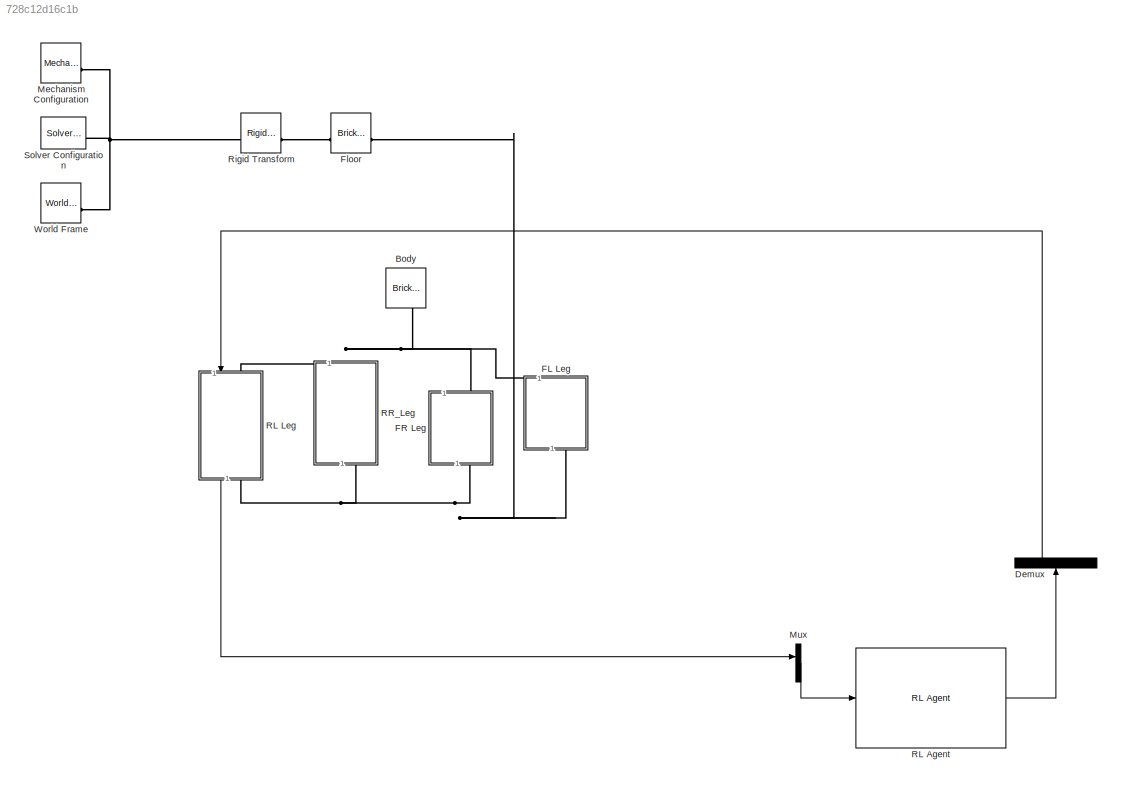
MODEL slx_728c12d16c1b
KIND model
CONFIG AbsTol = auto
CONFIG EnableMultiTasking = off
CONFIG FixedStep = auto
CONFIG MaxStep = auto
CONFIG MinStep = auto
CONFIG RelTol = 1e-3
CONFIG SampleTimeConstraint = Unconstrained
CONFIG SolverName = VariableStepAuto
CONFIG StartTime = 0.0
CONFIG StopTime = 10.0
BLOCK [Reference] Body  REF=sm_lib/Body Elements/Brick Solid
  NameLocation = top
  SourceBlock = sm_lib/Body Elements/Brick Solid
  SourceType = Brick Solid
BLOCK [Demux] Demux
  NameLocation = right
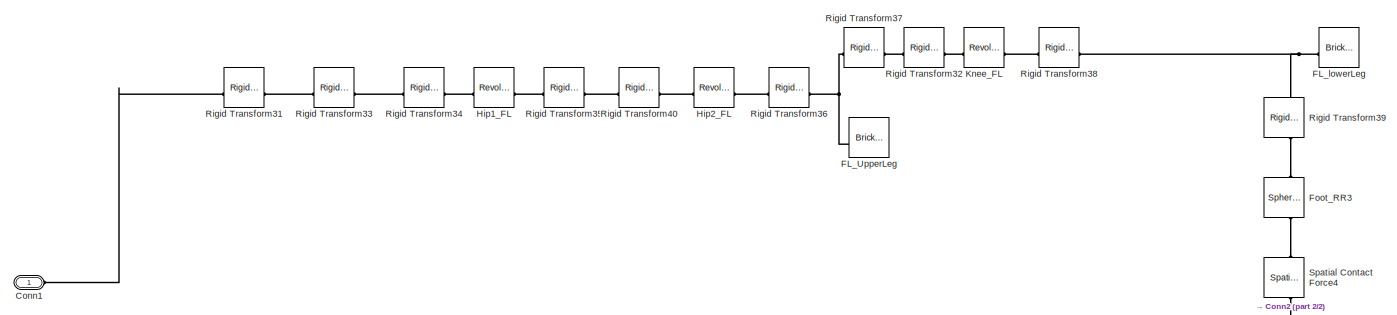
[diagram: FL Leg - part 1/2, top right region]
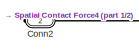
[diagram: FL Leg - part 2/2, bottom left region]
BLOCK [SubSystem] FL Leg
  NameLocation = left
BLOCK [PMIOPort] FL Leg/Conn1
  Side = Left
BLOCK [PMIOPort] FL Leg/Conn2
  Port = 2
  Side = Right
BLOCK [Reference] FL Leg/FL_UpperLeg  REF=sm_lib/Body Elements/Brick Solid
  NameLocation = top
  SourceBlock = sm_lib/Body Elements/Brick Solid
  SourceType = Brick Solid
BLOCK [Reference] FL Leg/FL_lowerLeg  REF=sm_lib/Body Elements/Brick Solid
  NameLocation = top
  SourceBlock = sm_lib/Body Elements/Brick Solid
  SourceType = Brick Solid
BLOCK [Reference] FL Leg/Foot_RR3  REF=sm_lib/Body Elements/Spherical Solid
  NameLocation = right
  SourceBlock = sm_lib/Body Elements/Spherical Solid
  SourceType = Spherical Solid
BLOCK [Reference] FL Leg/Hip1_FL  REF=sm_lib/Joints/Revolute Joint
  SourceBlock = sm_lib/Joints/Revolute Joint
  SourceType = Revolute Joint
BLOCK [Reference] FL Leg/Hip2_FL  REF=sm_lib/Joints/Revolute Joint
  SourceBlock = sm_lib/Joints/Revolute Joint
  SourceType = Revolute Joint
BLOCK [Reference] FL Leg/Knee_FL  REF=sm_lib/Joints/Revolute Joint
  SourceBlock = sm_lib/Joints/Revolute Joint
  SourceType = Revolute Joint
BLOCK [Reference] FL Leg/Rigid Transform31  REF=sm_lib/Frames and
Transforms/Rigid
Transform
  SourceBlock = sm_lib/Frames and\nTransforms/Rigid\nTransform
  SourceType = Rigid\nTransform
BLOCK [Reference] FL Leg/Rigid Transform32  REF=sm_lib/Frames and
Transforms/Rigid
Transform
  SourceBlock = sm_lib/Frames and\nTransforms/Rigid\nTransform
  SourceType = Rigid\nTransform
BLOCK [Reference] FL Leg/Rigid Transform33  REF=sm_lib/Frames and
Transforms/Rigid
Transform
  SourceBlock = sm_lib/Frames and\nTransforms/Rigid\nTransform
  SourceType = Rigid\nTransform
BLOCK [Reference] FL Leg/Rigid Transform34  REF=sm_lib/Frames and
Transforms/Rigid
Transform
  SourceBlock = sm_lib/Frames and\nTransforms/Rigid\nTransform
  SourceType = Rigid\nTransform
BLOCK [Reference] FL Leg/Rigid Transform35  REF=sm_lib/Frames and
Transforms/Rigid
Transform
  SourceBlock = sm_lib/Frames and\nTransforms/Rigid\nTransform
  SourceType = Rigid\nTransform
BLOCK [Reference] FL Leg/Rigid Transform36  REF=sm_lib/Frames and
Transforms/Rigid
Transform
  SourceBlock = sm_lib/Frames and\nTransforms/Rigid\nTransform
  SourceType = Rigid\nTransform
BLOCK [Reference] FL Leg/Rigid Transform37  REF=sm_lib/Frames and
Transforms/Rigid
Transform
  SourceBlock = sm_lib/Frames and\nTransforms/Rigid\nTransform
  SourceType = Rigid\nTransform
BLOCK [Reference] FL Leg/Rigid Transform38  REF=sm_lib/Frames and
Transforms/Rigid
Transform
  SourceBlock = sm_lib/Frames and\nTransforms/Rigid\nTransform
  SourceType = Rigid\nTransform
BLOCK [Reference] FL Leg/Rigid Transform39  REF=sm_lib/Frames and
Transforms/Rigid
Transform
  NameLocation = left
  SourceBlock = sm_lib/Frames and\nTransforms/Rigid\nTransform
  SourceType = Rigid\nTransform
BLOCK [Reference] FL Leg/Rigid Transform40  REF=sm_lib/Frames and
Transforms/Rigid
Transform
  SourceBlock = sm_lib/Frames and\nTransforms/Rigid\nTransform
  SourceType = Rigid\nTransform
BLOCK [Reference] FL Leg/Spatial Contact Force4  REF=sm_lib/Forces and
Torques/Spatial
Contact Force
  NameLocation = left
  SourceBlock = sm_lib/Forces and\nTorques/Spatial\nContact Force
  SourceType = Spatial\nContact Force
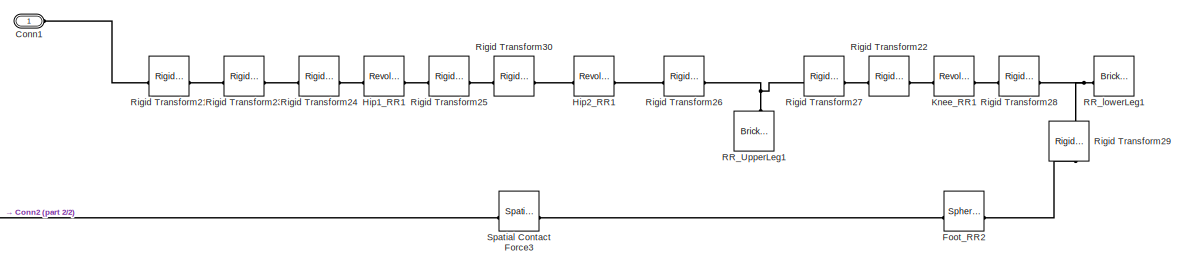
[diagram: FR Leg - part 1/2, top right region]
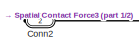
[diagram: FR Leg - part 2/2, bottom left region]
BLOCK [SubSystem] FR Leg
  NameLocation = left
BLOCK [PMIOPort] FR Leg/Conn1
  Side = Left
BLOCK [PMIOPort] FR Leg/Conn2
  Port = 2
  Side = Right
BLOCK [Reference] FR Leg/Foot_RR2  REF=sm_lib/Body Elements/Spherical Solid
  SourceBlock = sm_lib/Body Elements/Spherical Solid
  SourceType = Spherical Solid
BLOCK [Reference] FR Leg/Hip1_RR1  REF=sm_lib/Joints/Revolute Joint
  SourceBlock = sm_lib/Joints/Revolute Joint
  SourceType = Revolute Joint
BLOCK [Reference] FR Leg/Hip2_RR1  REF=sm_lib/Joints/Revolute Joint
  SourceBlock = sm_lib/Joints/Revolute Joint
  SourceType = Revolute Joint
BLOCK [Reference] FR Leg/Knee_RR1  REF=sm_lib/Joints/Revolute Joint
  SourceBlock = sm_lib/Joints/Revolute Joint
  SourceType = Revolute Joint
BLOCK [Reference] FR Leg/RR_UpperLeg1  REF=sm_lib/Body Elements/Brick Solid
  NameLocation = right
  SourceBlock = sm_lib/Body Elements/Brick Solid
  SourceType = Brick Solid
BLOCK [Reference] FR Leg/RR_lowerLeg1  REF=sm_lib/Body Elements/Brick Solid
  NameLocation = top
  SourceBlock = sm_lib/Body Elements/Brick Solid
  SourceType = Brick Solid
BLOCK [Reference] FR Leg/Rigid Transform21  REF=sm_lib/Frames and
Transforms/Rigid
Transform
  SourceBlock = sm_lib/Frames and\nTransforms/Rigid\nTransform
  SourceType = Rigid\nTransform
BLOCK [Reference] FR Leg/Rigid Transform22  REF=sm_lib/Frames and
Transforms/Rigid
Transform
  SourceBlock = sm_lib/Frames and\nTransforms/Rigid\nTransform
  SourceType = Rigid\nTransform
BLOCK [Reference] FR Leg/Rigid Transform23  REF=sm_lib/Frames and
Transforms/Rigid
Transform
  SourceBlock = sm_lib/Frames and\nTransforms/Rigid\nTransform
  SourceType = Rigid\nTransform
BLOCK [Reference] FR Leg/Rigid Transform24  REF=sm_lib/Frames and
Transforms/Rigid
Transform
  SourceBlock = sm_lib/Frames and\nTransforms/Rigid\nTransform
  SourceType = Rigid\nTransform
BLOCK [Reference] FR Leg/Rigid Transform25  REF=sm_lib/Frames and
Transforms/Rigid
Transform
  SourceBlock = sm_lib/Frames and\nTransforms/Rigid\nTransform
  SourceType = Rigid\nTransform
BLOCK [Reference] FR Leg/Rigid Transform26  REF=sm_lib/Frames and
Transforms/Rigid
Transform
  SourceBlock = sm_lib/Frames and\nTransforms/Rigid\nTransform
  SourceType = Rigid\nTransform
BLOCK [Reference] FR Leg/Rigid Transform27  REF=sm_lib/Frames and
Transforms/Rigid
Transform
  SourceBlock = sm_lib/Frames and\nTransforms/Rigid\nTransform
  SourceType = Rigid\nTransform
BLOCK [Reference] FR Leg/Rigid Transform28  REF=sm_lib/Frames and
Transforms/Rigid
Transform
  SourceBlock = sm_lib/Frames and\nTransforms/Rigid\nTransform
  SourceType = Rigid\nTransform
BLOCK [Reference] FR Leg/Rigid Transform29  REF=sm_lib/Frames and
Transforms/Rigid
Transform
  NameLocation = left
  SourceBlock = sm_lib/Frames and\nTransforms/Rigid\nTransform
  SourceType = Rigid\nTransform
BLOCK [Reference] FR Leg/Rigid Transform30  REF=sm_lib/Frames and
Transforms/Rigid
Transform
  SourceBlock = sm_lib/Frames and\nTransforms/Rigid\nTransform
  SourceType = Rigid\nTransform
BLOCK [Reference] FR Leg/Spatial Contact Force3  REF=sm_lib/Forces and
Torques/Spatial
Contact Force
  NameLocation = top
  SourceBlock = sm_lib/Forces and\nTorques/Spatial\nContact Force
  SourceType = Spatial\nContact Force
BLOCK [Reference] Floor  REF=sm_lib/Body Elements/Brick Solid
  NameLocation = top
  SourceBlock = sm_lib/Body Elements/Brick Solid
  SourceType = Brick Solid
BLOCK [Reference] Mechanism Configuration  REF=sm_lib/Utilities/Mechanism
Configuration
  SourceBlock = sm_lib/Utilities/Mechanism\nConfiguration
  SourceType = Mechanism\nConfiguration
BLOCK [Mux] Mux
  DisplayOption = bar
BLOCK [Reference] RL Agent  REF=rllib/RL Agent
  SourceBlock = rllib/RL Agent
  SourceType = RL Agent
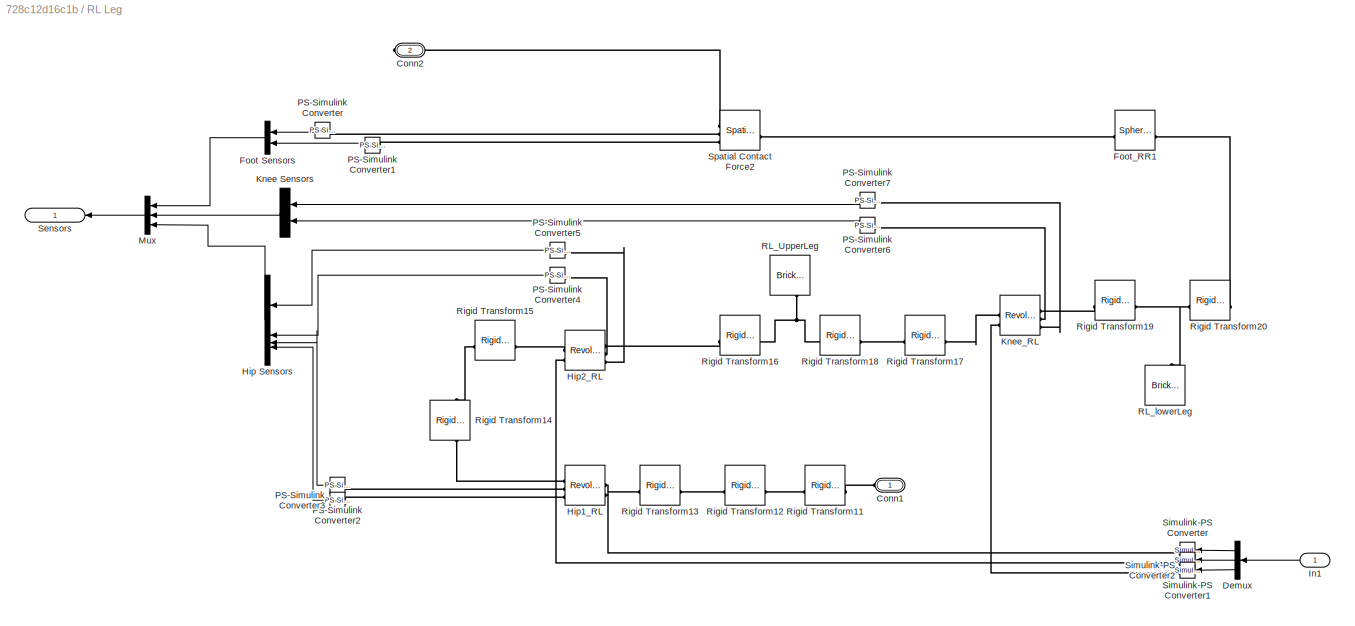
BLOCK [SubSystem] RL Leg
  NameLocation = left
BLOCK [PMIOPort] RL Leg/Conn1
  NameLocation = top
  Side = Left
BLOCK [PMIOPort] RL Leg/Conn2
  NameLocation = top
  Port = 2
  Side = Right
BLOCK [Demux] RL Leg/Demux
  NameLocation = top
  Outputs = 3
BLOCK [Mux] RL Leg/Foot Sensors
  DisplayOption = bar
  Inputs = 2
  NameLocation = top
BLOCK [Reference] RL Leg/Foot_RR1  REF=sm_lib/Body Elements/Spherical Solid
  SourceBlock = sm_lib/Body Elements/Spherical Solid
  SourceType = Spherical Solid
BLOCK [Mux] RL Leg/Hip Sensors
  DisplayOption = bar
  NameLocation = left
BLOCK [Reference] RL Leg/Hip1_RL  REF=sm_lib/Joints/Revolute Joint
  NameLocation = top
  SourceBlock = sm_lib/Joints/Revolute Joint
  SourceType = Revolute Joint
BLOCK [Reference] RL Leg/Hip2_RL  REF=sm_lib/Joints/Revolute Joint
  SourceBlock = sm_lib/Joints/Revolute Joint
  SourceType = Revolute Joint
BLOCK [Inport] RL Leg/In1
  NameLocation = top
BLOCK [Mux] RL Leg/Knee Sensors
  DisplayOption = bar
  Inputs = 2
  NameLocation = top
BLOCK [Reference] RL Leg/Knee_RL  REF=sm_lib/Joints/Revolute Joint
  SourceBlock = sm_lib/Joints/Revolute Joint
  SourceType = Revolute Joint
BLOCK [Mux] RL Leg/Mux
  DisplayOption = bar
  Inputs = 3
  NameLocation = top
BLOCK [Reference] RL Leg/PS-Simulink Converter  REF=nesl_utility/PS-Simulink
Converter
  NameLocation = top
  SourceBlock = nesl_utility/PS-Simulink\nConverter
  SourceType = PS-Simulink\nConverter
BLOCK [Reference] RL Leg/PS-Simulink Converter1  REF=nesl_utility/PS-Simulink
Converter
  NameLocation = top
  SourceBlock = nesl_utility/PS-Simulink\nConverter
  SourceType = PS-Simulink\nConverter
BLOCK [Reference] RL Leg/PS-Simulink Converter2  REF=nesl_utility/PS-Simulink
Converter
  NameLocation = top
  SourceBlock = nesl_utility/PS-Simulink\nConverter
  SourceType = PS-Simulink\nConverter
BLOCK [Reference] RL Leg/PS-Simulink Converter3  REF=nesl_utility/PS-Simulink
Converter
  NameLocation = right
  SourceBlock = nesl_utility/PS-Simulink\nConverter
  SourceType = PS-Simulink\nConverter
BLOCK [Reference] RL Leg/PS-Simulink Converter4  REF=nesl_utility/PS-Simulink
Converter
  NameLocation = top
  SourceBlock = nesl_utility/PS-Simulink\nConverter
  SourceType = PS-Simulink\nConverter
BLOCK [Reference] RL Leg/PS-Simulink Converter5  REF=nesl_utility/PS-Simulink
Converter
  NameLocation = top
  SourceBlock = nesl_utility/PS-Simulink\nConverter
  SourceType = PS-Simulink\nConverter
BLOCK [Reference] RL Leg/PS-Simulink Converter6  REF=nesl_utility/PS-Simulink
Converter
  NameLocation = top
  SourceBlock = nesl_utility/PS-Simulink\nConverter
  SourceType = PS-Simulink\nConverter
BLOCK [Reference] RL Leg/PS-Simulink Converter7  REF=nesl_utility/PS-Simulink
Converter
  NameLocation = top
  SourceBlock = nesl_utility/PS-Simulink\nConverter
  SourceType = PS-Simulink\nConverter
BLOCK [Reference] RL Leg/RL_UpperLeg  REF=sm_lib/Body Elements/Brick Solid
  NameLocation = left
  SourceBlock = sm_lib/Body Elements/Brick Solid
  SourceType = Brick Solid
BLOCK [Reference] RL Leg/RL_lowerLeg  REF=sm_lib/Body Elements/Brick Solid
  NameLocation = right
  SourceBlock = sm_lib/Body Elements/Brick Solid
  SourceType = Brick Solid
BLOCK [Reference] RL Leg/Rigid Transform11  REF=sm_lib/Frames and
Transforms/Rigid
Transform
  NameLocation = top
  SourceBlock = sm_lib/Frames and\nTransforms/Rigid\nTransform
  SourceType = Rigid\nTransform
BLOCK [Reference] RL Leg/Rigid Transform12  REF=sm_lib/Frames and
Transforms/Rigid
Transform
  NameLocation = top
  SourceBlock = sm_lib/Frames and\nTransforms/Rigid\nTransform
  SourceType = Rigid\nTransform
BLOCK [Reference] RL Leg/Rigid Transform13  REF=sm_lib/Frames and
Transforms/Rigid
Transform
  NameLocation = top
  SourceBlock = sm_lib/Frames and\nTransforms/Rigid\nTransform
  SourceType = Rigid\nTransform
BLOCK [Reference] RL Leg/Rigid Transform14  REF=sm_lib/Frames and
Transforms/Rigid
Transform
  NameLocation = right
  SourceBlock = sm_lib/Frames and\nTransforms/Rigid\nTransform
  SourceType = Rigid\nTransform
BLOCK [Reference] RL Leg/Rigid Transform15  REF=sm_lib/Frames and
Transforms/Rigid
Transform
  SourceBlock = sm_lib/Frames and\nTransforms/Rigid\nTransform
  SourceType = Rigid\nTransform
BLOCK [Reference] RL Leg/Rigid Transform16  REF=sm_lib/Frames and
Transforms/Rigid
Transform
  SourceBlock = sm_lib/Frames and\nTransforms/Rigid\nTransform
  SourceType = Rigid\nTransform
BLOCK [Reference] RL Leg/Rigid Transform17  REF=sm_lib/Frames and
Transforms/Rigid
Transform
  SourceBlock = sm_lib/Frames and\nTransforms/Rigid\nTransform
  SourceType = Rigid\nTransform
BLOCK [Reference] RL Leg/Rigid Transform18  REF=sm_lib/Frames and
Transforms/Rigid
Transform
  SourceBlock = sm_lib/Frames and\nTransforms/Rigid\nTransform
  SourceType = Rigid\nTransform
BLOCK [Reference] RL Leg/Rigid Transform19  REF=sm_lib/Frames and
Transforms/Rigid
Transform
  SourceBlock = sm_lib/Frames and\nTransforms/Rigid\nTransform
  SourceType = Rigid\nTransform
BLOCK [Reference] RL Leg/Rigid Transform20  REF=sm_lib/Frames and
Transforms/Rigid
Transform
  SourceBlock = sm_lib/Frames and\nTransforms/Rigid\nTransform
  SourceType = Rigid\nTransform
BLOCK [Outport] RL Leg/Sensors
  NameLocation = top
BLOCK [Reference] RL Leg/Simulink-PS Converter  REF=nesl_utility/Simulink-PS
Converter
  NameLocation = top
  SourceBlock = nesl_utility/Simulink-PS\nConverter
  SourceType = Simulink-PS\nConverter
BLOCK [Reference] RL Leg/Simulink-PS Converter1  REF=nesl_utility/Simulink-PS
Converter
  NameLocation = top
  SourceBlock = nesl_utility/Simulink-PS\nConverter
  SourceType = Simulink-PS\nConverter
BLOCK [Reference] RL Leg/Simulink-PS Converter2  REF=nesl_utility/Simulink-PS
Converter
  NameLocation = top
  SourceBlock = nesl_utility/Simulink-PS\nConverter
  SourceType = Simulink-PS\nConverter
BLOCK [Reference] RL Leg/Spatial Contact Force2  REF=sm_lib/Forces and
Torques/Spatial
Contact Force
  NameLocation = top
  SourceBlock = sm_lib/Forces and\nTorques/Spatial\nContact Force
  SourceType = Spatial\nContact Force
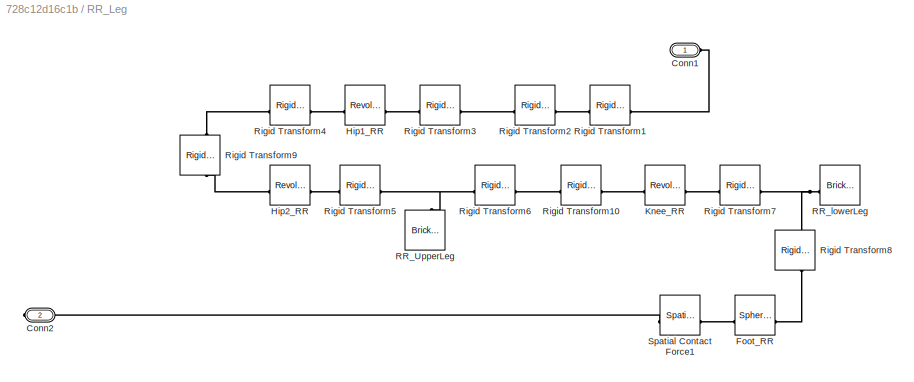
BLOCK [SubSystem] RR_Leg
  NameLocation = left
BLOCK [PMIOPort] RR_Leg/Conn1
  Side = Left
BLOCK [PMIOPort] RR_Leg/Conn2
  Port = 2
  Side = Right
BLOCK [Reference] RR_Leg/Foot_RR  REF=sm_lib/Body Elements/Spherical Solid
  SourceBlock = sm_lib/Body Elements/Spherical Solid
  SourceType = Spherical Solid
BLOCK [Reference] RR_Leg/Hip1_RR  REF=sm_lib/Joints/Revolute Joint
  NameLocation = top
  SourceBlock = sm_lib/Joints/Revolute Joint
  SourceType = Revolute Joint
BLOCK [Reference] RR_Leg/Hip2_RR  REF=sm_lib/Joints/Revolute Joint
  SourceBlock = sm_lib/Joints/Revolute Joint
  SourceType = Revolute Joint
BLOCK [Reference] RR_Leg/Knee_RR  REF=sm_lib/Joints/Revolute Joint
  SourceBlock = sm_lib/Joints/Revolute Joint
  SourceType = Revolute Joint
BLOCK [Reference] RR_Leg/RR_UpperLeg  REF=sm_lib/Body Elements/Brick Solid
  NameLocation = right
  SourceBlock = sm_lib/Body Elements/Brick Solid
  SourceType = Brick Solid
BLOCK [Reference] RR_Leg/RR_lowerLeg  REF=sm_lib/Body Elements/Brick Solid
  NameLocation = top
  SourceBlock = sm_lib/Body Elements/Brick Solid
  SourceType = Brick Solid
BLOCK [Reference] RR_Leg/Rigid Transform1  REF=sm_lib/Frames and
Transforms/Rigid
Transform
  NameLocation = top
  SourceBlock = sm_lib/Frames and\nTransforms/Rigid\nTransform
  SourceType = Rigid\nTransform
BLOCK [Reference] RR_Leg/Rigid Transform10  REF=sm_lib/Frames and
Transforms/Rigid
Transform
  SourceBlock = sm_lib/Frames and\nTransforms/Rigid\nTransform
  SourceType = Rigid\nTransform
BLOCK [Reference] RR_Leg/Rigid Transform2  REF=sm_lib/Frames and
Transforms/Rigid
Transform
  NameLocation = top
  SourceBlock = sm_lib/Frames and\nTransforms/Rigid\nTransform
  SourceType = Rigid\nTransform
BLOCK [Reference] RR_Leg/Rigid Transform3  REF=sm_lib/Frames and
Transforms/Rigid
Transform
  NameLocation = top
  SourceBlock = sm_lib/Frames and\nTransforms/Rigid\nTransform
  SourceType = Rigid\nTransform
BLOCK [Reference] RR_Leg/Rigid Transform4  REF=sm_lib/Frames and
Transforms/Rigid
Transform
  NameLocation = top
  SourceBlock = sm_lib/Frames and\nTransforms/Rigid\nTransform
  SourceType = Rigid\nTransform
BLOCK [Reference] RR_Leg/Rigid Transform5  REF=sm_lib/Frames and
Transforms/Rigid
Transform
  SourceBlock = sm_lib/Frames and\nTransforms/Rigid\nTransform
  SourceType = Rigid\nTransform
BLOCK [Reference] RR_Leg/Rigid Transform6  REF=sm_lib/Frames and
Transforms/Rigid
Transform
  SourceBlock = sm_lib/Frames and\nTransforms/Rigid\nTransform
  SourceType = Rigid\nTransform
BLOCK [Reference] RR_Leg/Rigid Transform7  REF=sm_lib/Frames and
Transforms/Rigid
Transform
  SourceBlock = sm_lib/Frames and\nTransforms/Rigid\nTransform
  SourceType = Rigid\nTransform
BLOCK [Reference] RR_Leg/Rigid Transform8  REF=sm_lib/Frames and
Transforms/Rigid
Transform
  NameLocation = left
  SourceBlock = sm_lib/Frames and\nTransforms/Rigid\nTransform
  SourceType = Rigid\nTransform
BLOCK [Reference] RR_Leg/Rigid Transform9  REF=sm_lib/Frames and
Transforms/Rigid
Transform
  NameLocation = left
  SourceBlock = sm_lib/Frames and\nTransforms/Rigid\nTransform
  SourceType = Rigid\nTransform
BLOCK [Reference] RR_Leg/Spatial Contact Force1  REF=sm_lib/Forces and
Torques/Spatial
Contact Force
  NameLocation = top
  SourceBlock = sm_lib/Forces and\nTorques/Spatial\nContact Force
  SourceType = Spatial\nContact Force
BLOCK [Reference] Rigid Transform  REF=sm_lib/Frames and
Transforms/Rigid
Transform
  SourceBlock = sm_lib/Frames and\nTransforms/Rigid\nTransform
  SourceType = Rigid\nTransform
BLOCK [Reference] Solver Configuration  REF=nesl_utility/Solver
Configuration
  SourceBlock = nesl_utility/Solver\nConfiguration
  SourceType = Solver\nConfiguration
BLOCK [Reference] World Frame  REF=sm_lib/Frames and
Transforms/World Frame
  SourceBlock = sm_lib/Frames and\nTransforms/World Frame
  SourceType = World Frame
LINE Demux:1 -> RL Leg:1
LINE Mux:1 -> RL Agent:1
LINE RL Agent:1 -> Demux:1
LINE RL Leg/Demux:1 -> RL Leg/Simulink-PS Converter:1
LINE RL Leg/Demux:2 -> RL Leg/Simulink-PS Converter1:1
LINE RL Leg/Demux:3 -> RL Leg/Simulink-PS Converter2:1
LINE RL Leg/Foot Sensors:1 -> RL Leg/Mux:1
LINE RL Leg/Hip Sensors:1 -> RL Leg/Mux:3
LINE RL Leg/In1:1 -> RL Leg/Demux:1
LINE RL Leg/Knee Sensors:1 -> RL Leg/Mux:2
LINE RL Leg/Mux:1 -> RL Leg/Sensors:1
LINE RL Leg/PS-Simulink Converter1:1 -> RL Leg/Foot Sensors:2
LINE RL Leg/PS-Simulink Converter2:1 -> RL Leg/Hip Sensors:3
LINE RL Leg/PS-Simulink Converter3:1 -> RL Leg/Hip Sensors:4
LINE RL Leg/PS-Simulink Converter4:1 -> RL Leg/Hip Sensors:2
LINE RL Leg/PS-Simulink Converter5:1 -> RL Leg/Hip Sensors:1
LINE RL Leg/PS-Simulink Converter6:1 -> RL Leg/Knee Sensors:2
LINE RL Leg/PS-Simulink Converter7:1 -> RL Leg/Knee Sensors:1
LINE RL Leg/PS-Simulink Converter:1 -> RL Leg/Foot Sensors:1
LINE RL Leg:1 -> Mux:1
PNET net1: Body:RConn1 -- FL Leg:LConn1 -- FR Leg:LConn1 -- RL Leg:LConn1 -- RR_Leg:LConn1
PLINE FL Leg/Conn1:RConn1 -- FL Leg/Rigid Transform31:LConn1
PLINE FL Leg/Conn2:RConn1 -- FL Leg/Spatial Contact Force4:RConn1
PNET net2: FL Leg/FL_UpperLeg:RConn1 -- FL Leg/Rigid Transform36:RConn1 -- FL Leg/Rigid Transform37:LConn1
PNET net3: FL Leg/FL_lowerLeg:RConn1 -- FL Leg/Rigid Transform38:RConn1 -- FL Leg/Rigid Transform39:LConn1
PLINE FL Leg/Foot_RR3:LConn1 -- FL Leg/Spatial Contact Force4:LConn1
PLINE FL Leg/Foot_RR3:RConn1 -- FL Leg/Rigid Transform39:RConn1
PLINE FL Leg/Hip1_FL:LConn1 -- FL Leg/Rigid Transform34:RConn1
PLINE FL Leg/Hip1_FL:RConn1 -- FL Leg/Rigid Transform35:LConn1
PLINE FL Leg/Hip2_FL:LConn1 -- FL Leg/Rigid Transform40:RConn1
PLINE FL Leg/Hip2_FL:RConn1 -- FL Leg/Rigid Transform36:LConn1
PLINE FL Leg/Knee_FL:LConn1 -- FL Leg/Rigid Transform32:RConn1
PLINE FL Leg/Knee_FL:RConn1 -- FL Leg/Rigid Transform38:LConn1
PLINE FL Leg/Rigid Transform31:RConn1 -- FL Leg/Rigid Transform33:LConn1
PLINE FL Leg/Rigid Transform32:LConn1 -- FL Leg/Rigid Transform37:RConn1
PLINE FL Leg/Rigid Transform33:RConn1 -- FL Leg/Rigid Transform34:LConn1
PLINE FL Leg/Rigid Transform35:RConn1 -- FL Leg/Rigid Transform40:LConn1
PNET net4: FL Leg:RConn1 -- FR Leg:RConn1 -- Floor:LConn1 -- RL Leg:RConn1 -- RR_Leg:RConn1
PLINE FR Leg/Conn1:RConn1 -- FR Leg/Rigid Transform21:LConn1
PLINE FR Leg/Conn2:RConn1 -- FR Leg/Spatial Contact Force3:RConn1
PLINE FR Leg/Foot_RR2:LConn1 -- FR Leg/Spatial Contact Force3:LConn1
PLINE FR Leg/Foot_RR2:RConn1 -- FR Leg/Rigid Transform29:RConn1
PLINE FR Leg/Hip1_RR1:LConn1 -- FR Leg/Rigid Transform24:RConn1
PLINE FR Leg/Hip1_RR1:RConn1 -- FR Leg/Rigid Transform25:LConn1
PLINE FR Leg/Hip2_RR1:LConn1 -- FR Leg/Rigid Transform30:RConn1
PLINE FR Leg/Hip2_RR1:RConn1 -- FR Leg/Rigid Transform26:LConn1
PLINE FR Leg/Knee_RR1:LConn1 -- FR Leg/Rigid Transform22:RConn1
PLINE FR Leg/Knee_RR1:RConn1 -- FR Leg/Rigid Transform28:LConn1
PNET net5: FR Leg/RR_UpperLeg1:RConn1 -- FR Leg/Rigid Transform26:RConn1 -- FR Leg/Rigid Transform27:LConn1
PNET net6: FR Leg/RR_lowerLeg1:RConn1 -- FR Leg/Rigid Transform28:RConn1 -- FR Leg/Rigid Transform29:LConn1
PLINE FR Leg/Rigid Transform21:RConn1 -- FR Leg/Rigid Transform23:LConn1
PLINE FR Leg/Rigid Transform22:LConn1 -- FR Leg/Rigid Transform27:RConn1
PLINE FR Leg/Rigid Transform23:RConn1 -- FR Leg/Rigid Transform24:LConn1
PLINE FR Leg/Rigid Transform25:RConn1 -- FR Leg/Rigid Transform30:LConn1
PLINE Floor:RConn1 -- Rigid Transform:RConn1
PNET net7: Mechanism Configuration:RConn1 -- Rigid Transform:LConn1 -- Solver Configuration:RConn1 -- World Frame:RConn1
PLINE RL Leg/Conn1:RConn1 -- RL Leg/Rigid Transform11:LConn1
PLINE RL Leg/Conn2:RConn1 -- RL Leg/Spatial Contact Force2:RConn1
PLINE RL Leg/Foot_RR1:LConn1 -- RL Leg/Spatial Contact Force2:LConn1
PLINE RL Leg/Foot_RR1:RConn1 -- RL Leg/Rigid Transform20:RConn1
PLINE RL Leg/Hip1_RL:LConn1 -- RL Leg/Rigid Transform13:RConn1
PLINE RL Leg/Hip1_RL:LConn2 -- RL Leg/Simulink-PS Converter:RConn1
PLINE RL Leg/Hip1_RL:RConn1 -- RL Leg/Rigid Transform14:LConn1
PLINE RL Leg/Hip1_RL:RConn2 -- RL Leg/PS-Simulink Converter2:LConn1
PLINE RL Leg/Hip1_RL:RConn3 -- RL Leg/PS-Simulink Converter3:LConn1
PLINE RL Leg/Hip2_RL:LConn1 -- RL Leg/Rigid Transform15:RConn1
PLINE RL Leg/Hip2_RL:LConn2 -- RL Leg/Simulink-PS Converter1:RConn1
PLINE RL Leg/Hip2_RL:RConn1 -- RL Leg/Rigid Transform16:LConn1
PLINE RL Leg/Hip2_RL:RConn2 -- RL Leg/PS-Simulink Converter4:LConn1
PLINE RL Leg/Hip2_RL:RConn3 -- RL Leg/PS-Simulink Converter5:LConn1
PLINE RL Leg/Knee_RL:LConn1 -- RL Leg/Rigid Transform17:RConn1
PLINE RL Leg/Knee_RL:LConn2 -- RL Leg/Simulink-PS Converter2:RConn1
PLINE RL Leg/Knee_RL:RConn1 -- RL Leg/Rigid Transform19:LConn1
PLINE RL Leg/Knee_RL:RConn2 -- RL Leg/PS-Simulink Converter6:LConn1
PLINE RL Leg/Knee_RL:RConn3 -- RL Leg/PS-Simulink Converter7:LConn1
PLINE RL Leg/PS-Simulink Converter1:LConn1 -- RL Leg/Spatial Contact Force2:RConn3
PLINE RL Leg/PS-Simulink Converter:LConn1 -- RL Leg/Spatial Contact Force2:RConn2
PNET net8: RL Leg/RL_UpperLeg:RConn1 -- RL Leg/Rigid Transform16:RConn1 -- RL Leg/Rigid Transform18:LConn1
PNET net9: RL Leg/RL_lowerLeg:RConn1 -- RL Leg/Rigid Transform19:RConn1 -- RL Leg/Rigid Transform20:LConn1
PLINE RL Leg/Rigid Transform11:RConn1 -- RL Leg/Rigid Transform12:LConn1
PLINE RL Leg/Rigid Transform12:RConn1 -- RL Leg/Rigid Transform13:LConn1
PLINE RL Leg/Rigid Transform14:RConn1 -- RL Leg/Rigid Transform15:LConn1
PLINE RL Leg/Rigid Transform17:LConn1 -- RL Leg/Rigid Transform18:RConn1
PLINE RR_Leg/Conn1:RConn1 -- RR_Leg/Rigid Transform1:LConn1
PLINE RR_Leg/Conn2:RConn1 -- RR_Leg/Spatial Contact Force1:RConn1
PLINE RR_Leg/Foot_RR:LConn1 -- RR_Leg/Spatial Contact Force1:LConn1
PLINE RR_Leg/Foot_RR:RConn1 -- RR_Leg/Rigid Transform8:RConn1
PLINE RR_Leg/Hip1_RR:LConn1 -- RR_Leg/Rigid Transform3:RConn1
PLINE RR_Leg/Hip1_RR:RConn1 -- RR_Leg/Rigid Transform4:LConn1
PLINE RR_Leg/Hip2_RR:LConn1 -- RR_Leg/Rigid Transform9:RConn1
PLINE RR_Leg/Hip2_RR:RConn1 -- RR_Leg/Rigid Transform5:LConn1
PLINE RR_Leg/Knee_RR:LConn1 -- RR_Leg/Rigid Transform10:RConn1
PLINE RR_Leg/Knee_RR:RConn1 -- RR_Leg/Rigid Transform7:LConn1
PNET net10: RR_Leg/RR_UpperLeg:RConn1 -- RR_Leg/Rigid Transform5:RConn1 -- RR_Leg/Rigid Transform6:LConn1
PNET net11: RR_Leg/RR_lowerLeg:RConn1 -- RR_Leg/Rigid Transform7:RConn1 -- RR_Leg/Rigid Transform8:LConn1
PLINE RR_Leg/Rigid Transform10:LConn1 -- RR_Leg/Rigid Transform6:RConn1
PLINE RR_Leg/Rigid Transform1:RConn1 -- RR_Leg/Rigid Transform2:LConn1
PLINE RR_Leg/Rigid Transform2:RConn1 -- RR_Leg/Rigid Transform3:LConn1
PLINE RR_Leg/Rigid Transform4:RConn1 -- RR_Leg/Rigid Transform9:LConn1
note: PNET lines group multi-terminal physical nets as a canonical sorted terminal list (undirected conserving connections); 2-terminal nets keep the pairwise PLINE form
